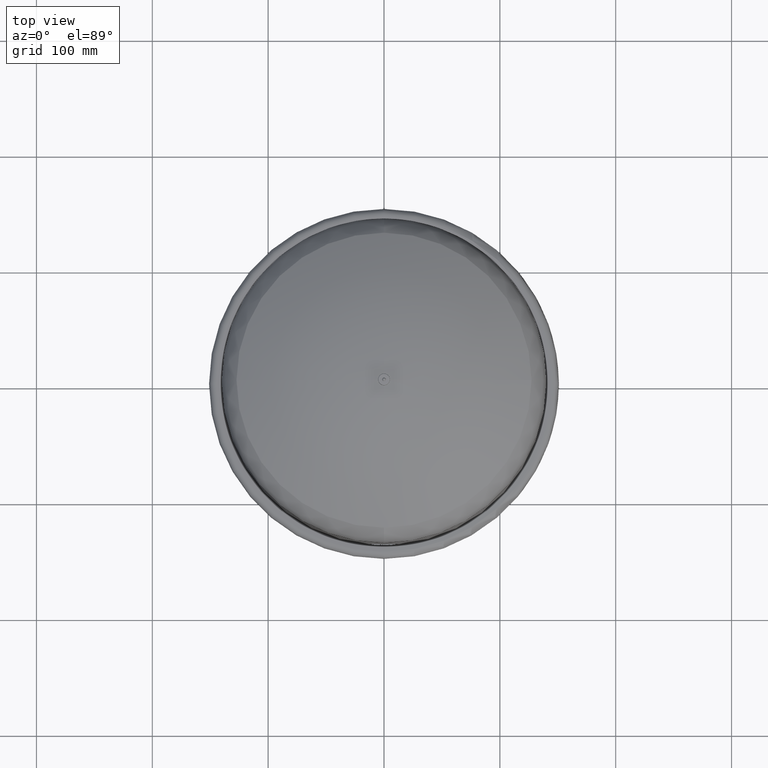
[diagram: clean part render]
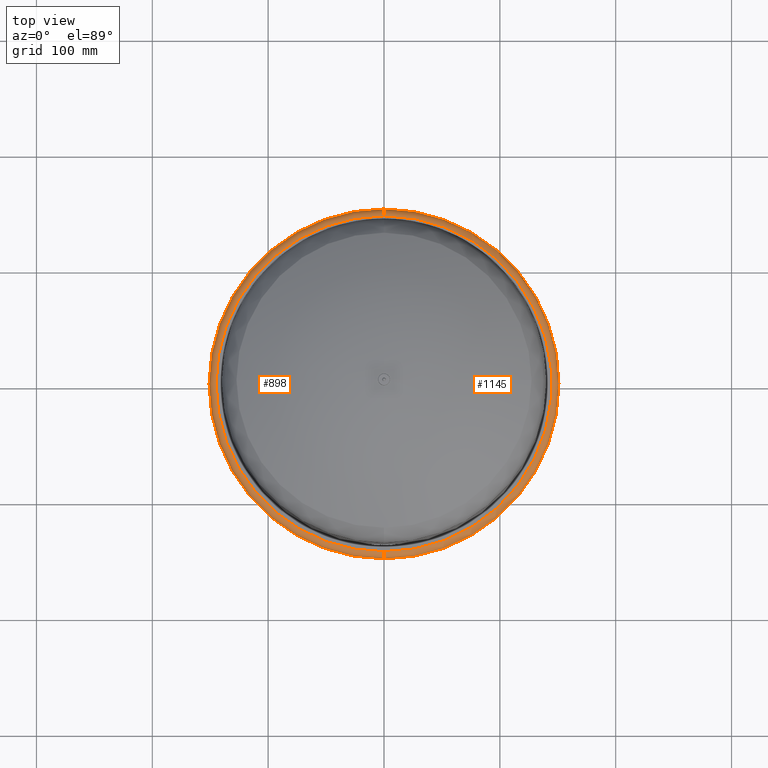
[diagram: same view with one multi-face feature highlighted, each face labeled with its STEP entity id]
A machine part, top view. The highlighted faces form ONE feature: a constant-radius fillet chain: 2 tangent blend faces with common blend radius 6 mm. The faces share edges in the B-rep.
Their STEP definitions:
[1] entity #898 (Torus):
#837=CARTESIAN_POINT('',(-2.465190E-031,4.440892E-016,238.0));
#838=DIRECTION('',(-1.540744E-032,6.123032E-017,1.0));
#839=DIRECTION('',(0.0,-1.0,0.0));
#840=AXIS2_PLACEMENT_3D('',#837,#838,#839);
#841=TOROIDAL_SURFACE('',#840,145.0,6.000000000000001);
#842=CARTESIAN_POINT('',(-3.389637E-031,-145.00000000000003,244.0));
#843=VERTEX_POINT('',#842);
#844=CARTESIAN_POINT('',(-2.465190E-031,-151.0,238.0));
#845=VERTEX_POINT('',#844);
#846=CARTESIAN_POINT('',(-2.465190E-031,-145.0,238.0));
#847=DIRECTION('',(1.0,0.0,0.0));
#848=DIRECTION('',(0.0,-1.0,0.0));
#849=AXIS2_PLACEMENT_3D('',#846,#847,#848);
#850=CIRCLE('',#849,6.000000000000001);
#851=EDGE_CURVE('',#843,#845,#850,.T.);
#852=ORIENTED_EDGE('',*,*,#851,.F.);
#853=CARTESIAN_POINT('',(-145.00000000000003,8.881784E-016,244.0));
#854=VERTEX_POINT('',#853);
#855=CARTESIAN_POINT('',(-2.465190E-031,8.881784E-016,244.0));
#856=DIRECTION('',(0.0,0.0,1.0));
#857=DIRECTION('',(-1.0,0.0,0.0));
#858=AXIS2_PLACEMENT_3D('',#855,#856,#857);
#859=CIRCLE('',#858,145.00000000000003);
#860=EDGE_CURVE('',#854,#843,#859,.T.);
#861=ORIENTED_EDGE('',*,*,#860,.F.);
#862=CARTESIAN_POINT('',(-1.775679E-014,145.00000000000003,244.0));
#863=VERTEX_POINT('',#862);
#864=CARTESIAN_POINT('',(-2.465190E-031,8.881784E-016,244.0));
#865=DIRECTION('',(0.0,0.0,1.0));
#866=DIRECTION('',(-1.0,0.0,0.0));
#867=AXIS2_PLACEMENT_3D('',#864,#865,#866);
#868=CIRCLE('',#867,145.00000000000003);
#869=EDGE_CURVE('',#863,#854,#868,.T.);
#870=ORIENTED_EDGE('',*,*,#869,.F.);
#871=CARTESIAN_POINT('',(-1.849156E-014,151.0,238.0));
#872=VERTEX_POINT('',#871);
#873=CARTESIAN_POINT('',(-1.775679E-014,145.0,238.0));
#874=DIRECTION('',(-1.0,0.0,0.0));
#875=DIRECTION('',(0.0,1.0,0.0));
#876=AXIS2_PLACEMENT_3D('',#873,#874,#875);
#877=CIRCLE('',#876,6.000000000000001);
#878=EDGE_CURVE('',#863,#872,#877,.T.);
#879=ORIENTED_EDGE('',*,*,#878,.T.);
#880=CARTESIAN_POINT('',(-151.0,4.440892E-016,238.0));
#881=VERTEX_POINT('',#880);
#882=CARTESIAN_POINT('',(-1.540744E-031,4.440892E-016,238.0));
#883=DIRECTION('',(0.0,0.0,1.0));
#884=DIRECTION('',(-1.0,0.0,0.0));
#885=AXIS2_PLACEMENT_3D('',#882,#883,#884);
#886=CIRCLE('',#885,151.0);
#887=EDGE_CURVE('',#872,#881,#886,.T.);
#888=ORIENTED_EDGE('',*,*,#887,.T.);
#889=CARTESIAN_POINT('',(-1.540744E-031,4.440892E-016,238.0));
#890=DIRECTION('',(0.0,0.0,1.0));
#891=DIRECTION('',(-1.0,0.0,0.0));
#892=AXIS2_PLACEMENT_3D('',#889,#890,#891);
#893=CIRCLE('',#892,151.0);
#894=EDGE_CURVE('',#881,#845,#893,.T.);
#895=ORIENTED_EDGE('',*,*,#894,.T.);
#896=EDGE_LOOP('',(#852,#861,#870,#879,#888,#895));
#897=FACE_OUTER_BOUND('',#896,.T.);
#898=ADVANCED_FACE('',(#897),#841,.T.);
[2] entity #1145 (Torus):
#842=CARTESIAN_POINT('',(-3.389637E-031,-145.00000000000003,244.0));
#843=VERTEX_POINT('',#842);
#844=CARTESIAN_POINT('',(-2.465190E-031,-151.0,238.0));
#845=VERTEX_POINT('',#844);
#846=CARTESIAN_POINT('',(-2.465190E-031,-145.0,238.0));
#847=DIRECTION('',(1.0,0.0,0.0));
#848=DIRECTION('',(0.0,-1.0,0.0));
#849=AXIS2_PLACEMENT_3D('',#846,#847,#848);
#850=CIRCLE('',#849,6.000000000000001);
#851=EDGE_CURVE('',#843,#845,#850,.T.);
#862=CARTESIAN_POINT('',(-1.775679E-014,145.00000000000003,244.0));
#863=VERTEX_POINT('',#862);
#871=CARTESIAN_POINT('',(-1.849156E-014,151.0,238.0));
#872=VERTEX_POINT('',#871);
#873=CARTESIAN_POINT('',(-1.775679E-014,145.0,238.0));
#874=DIRECTION('',(-1.0,0.0,0.0));
#875=DIRECTION('',(0.0,1.0,0.0));
#876=AXIS2_PLACEMENT_3D('',#873,#874,#875);
#877=CIRCLE('',#876,6.000000000000001);
#878=EDGE_CURVE('',#863,#872,#877,.T.);
#913=CARTESIAN_POINT('',(151.0,1.905811E-014,238.0));
#914=VERTEX_POINT('',#913);
#915=CARTESIAN_POINT('',(-1.540744E-031,4.440892E-016,238.0));
#916=DIRECTION('',(0.0,0.0,1.0));
#917=DIRECTION('',(-1.0,0.0,0.0));
#918=AXIS2_PLACEMENT_3D('',#915,#916,#917);
#919=CIRCLE('',#918,151.0);
#920=EDGE_CURVE('',#914,#872,#919,.T.);
#1116=CARTESIAN_POINT('',(-1.540744E-031,4.440892E-016,238.0));
#1117=DIRECTION('',(0.0,0.0,1.0));
#1118=DIRECTION('',(-1.0,0.0,0.0));
#1119=AXIS2_PLACEMENT_3D('',#1116,#1117,#1118);
#1120=CIRCLE('',#1119,151.0);
#1121=EDGE_CURVE('',#845,#914,#1120,.T.);
#1127=CARTESIAN_POINT('',(-2.465190E-031,4.440892E-016,238.0));
#1128=DIRECTION('',(-1.540744E-032,6.123032E-017,1.0));
#1129=DIRECTION('',(0.0,-1.0,0.0));
#1130=AXIS2_PLACEMENT_3D('',#1127,#1128,#1129);
#1131=TOROIDAL_SURFACE('',#1130,145.0,6.000000000000001);
#1132=ORIENTED_EDGE('',*,*,#851,.T.);
#1133=ORIENTED_EDGE('',*,*,#1121,.T.);
#1134=ORIENTED_EDGE('',*,*,#920,.T.);
#1135=ORIENTED_EDGE('',*,*,#878,.F.);
#1136=CARTESIAN_POINT('',(-2.465190E-031,8.881784E-016,244.0));
#1137=DIRECTION('',(0.0,0.0,1.0));
#1138=DIRECTION('',(-1.0,0.0,0.0));
#1139=AXIS2_PLACEMENT_3D('',#1136,#1137,#1138);
#1140=CIRCLE('',#1139,145.00000000000003);
#1141=EDGE_CURVE('',#843,#863,#1140,.T.);
#1142=ORIENTED_EDGE('',*,*,#1141,.F.);
#1143=EDGE_LOOP('',(#1132,#1133,#1134,#1135,#1142));
#1144=FACE_OUTER_BOUND('',#1143,.T.);
#1145=ADVANCED_FACE('',(#1144),#1131,.T.);